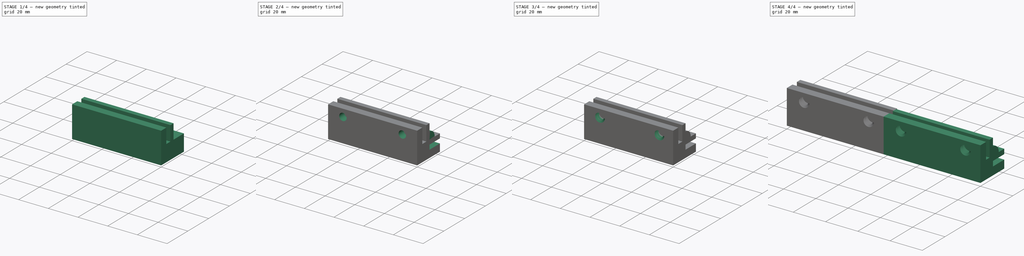
[diagram: build sequence overview — one tinted view per stage of 4, left to right]
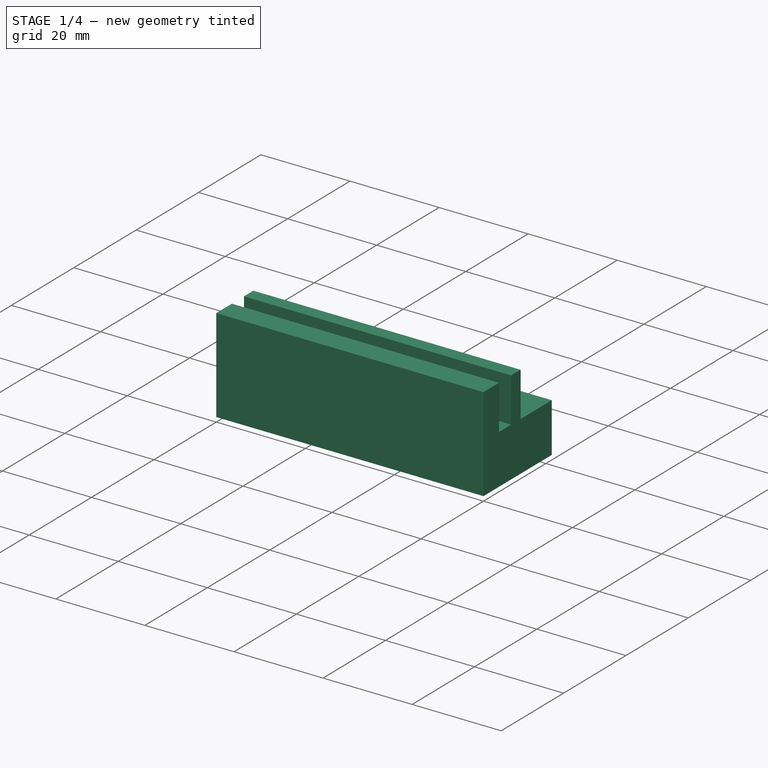
[diagram: stage 1 of 4 — iso view after this stage's code; geometry added in this stage tinted green]
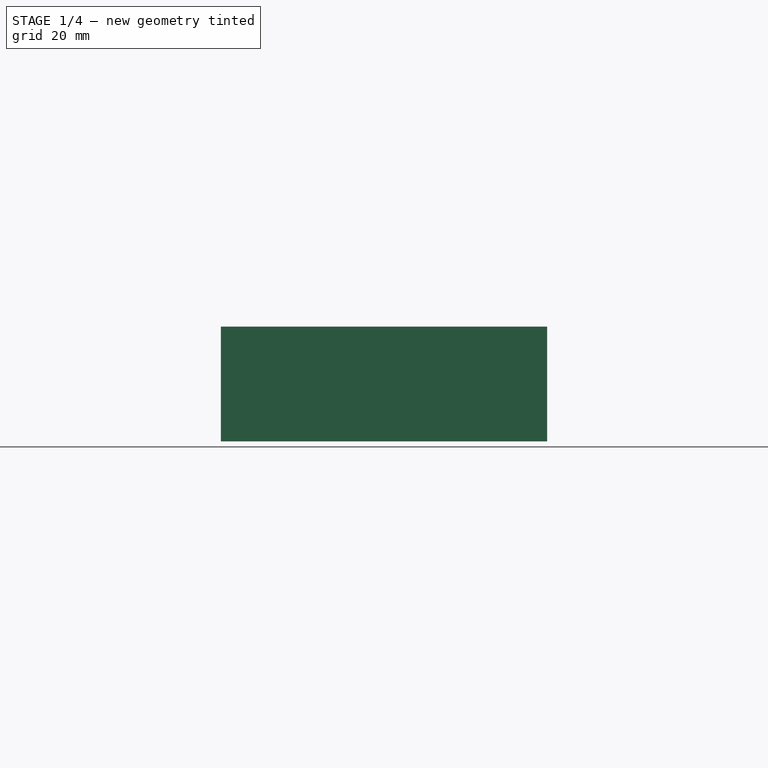
[diagram: stage 1 of 4 — front view after this stage's code; geometry added in this stage tinted green]
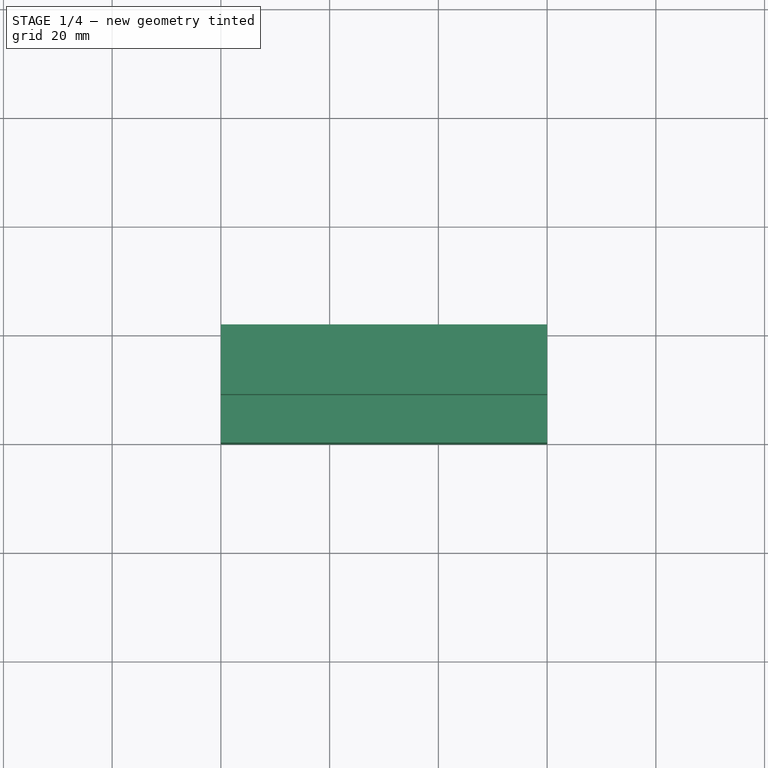
[diagram: stage 1 of 4 — top view after this stage's code; geometry added in this stage tinted green]
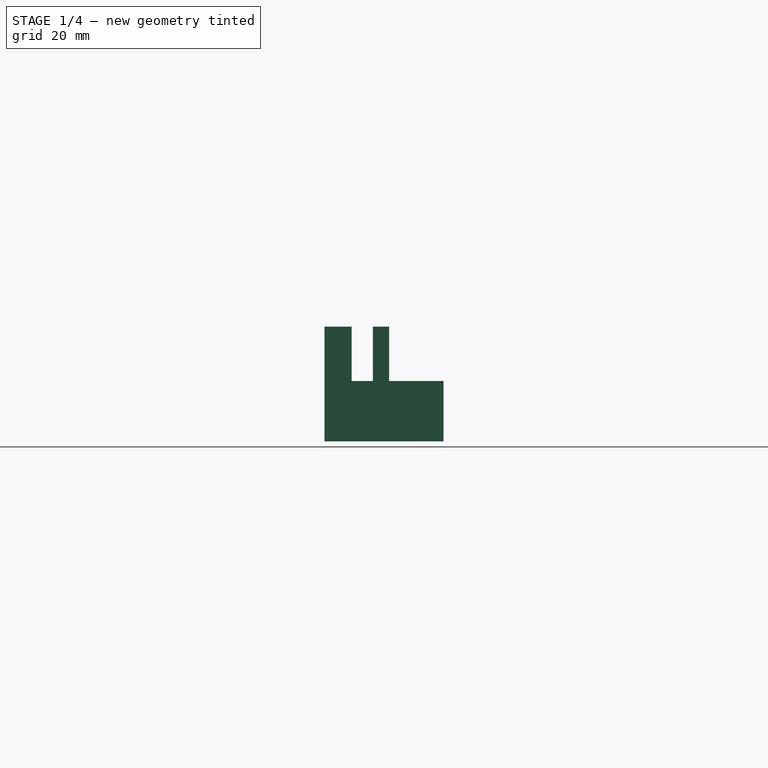
[diagram: stage 1 of 4 — right view after this stage's code; geometry added in this stage tinted green]
FCSTD DOCUMENT  (FreeCAD 0.20R29177 (Git))
Label: glassJoint40
License: All rights reserved
LicenseURL: http://en.wikipedia.org/wiki/All_rights_reserved
objects: Sketcher::SketchObject×11, PartDesign::Pocket×4, PartDesign::SubtractiveHelix×4, PartDesign::Pad×3, Spreadsheet::Sheet×1, PartDesign::Body×1, Part::Refine×1, Part::Feature×1, Part::MultiFuse×1
note: 37 computed .brp shape members not serialized (recipe doc carries the construction recipe); baked Part::Feature solids carry a one-line shape summary decoded from their .brp

FEATURE [Spreadsheet::Sheet] Spreadsheet
  cells = A2=width; B2(width)=60; C2=arm length, 60, temp change to 40; A3=height; B3(height)=10; C3=minus clamThickness is depth of glass in clam; A4=jointLen; B4(jointLen)=2; A5=glassThinkness; B5(glassThinkness)=2; A6=glassSpacing; B6(glassSpacing)=1.1; C6=0.15 is a bit too tight, changing to 0.2, to 0.5 (tight), to 0.9 (slight tight) to 1.1; A7=wallThickness; B7(wallThickness)=3; C8=total clam thickness; D8=wallThickness*2+glassThickness+glassSpacing; C9=not used; E9=screwHoleToXSide; F9(screwHoleToXSide)==B3 / 2 + F17; A10=clamOuterThickness; B10(clamOuterThickness)=5; E10=glassWithSpacing; F10(glassWithSpacing)==B5 + B6; E11=clamThickNess; F11(clamThickNess)==F10 + B7 + B10; G11=total Clam thickness, wall+glass+spacing+outerClamThickness; E12=totalHeight; F12(totalHeight)==B3 + F17; G12=clamThickness+height; H12=this is how long the total arm is; A13=screwR; B13(screwR)=2.5; E13=screwX; A14=screwBase; B14(screwPitch)=1.8; E14=pitch; F14(pitch)==B14 + 0.1; A15=screwHoleToSide; B15(screwHoleToSide)==B2 / 6; E15=pocketDepth; F15(pocketDepth)==F12 - F17; A16=screwHoleToSideLong; B16(screwHoleToSideLong)==B2 - B15; E16=glassWithSpacing1; F16(glassWithSpacing1)==B17 + B6; A17=glassThinkness1; B17(glassThinkness1)=2.8; E17=clamThickness1; F17(clamThickness1)==F16 + B7 + B10; E18=totalHeight1; F18(totalHeight1)==B3 + F11; E19=screwHoleToXSide1; F19(screwHoleToXSide1)==B3 / 2 + F11; G19=Spreadsheet.height / 2 + Spreadsheet.clamThickNess; E20=poketDepth1; F20(poketDepth1)==F18 - F11
FEATURE [Sketcher::SketchObject] Sketch
  FullyConstrained = true
  MapMode = 5
  Support = -> [XY_Plane]
  expr: Constraints[10] = Spreadsheet.clamThickness1
  expr: Constraints[9] = Spreadsheet.width
  sketch-geometry (4):
    g0: LineSegment StartX=0 StartY=0 StartZ=0 EndX=60 EndY=0 EndZ=0
    g1: LineSegment StartX=60 StartY=0 StartZ=0 EndX=60 EndY=11.9 EndZ=0
    g2: LineSegment StartX=60 StartY=11.9 StartZ=0 EndX=0 EndY=11.9 EndZ=0
    g3: LineSegment StartX=0 StartY=11.9 StartZ=0 EndX=0 EndY=0 EndZ=0
  constraints (11):
    c: Coincident(g0,g1)
    c: Coincident(g1,g2)
    c: Coincident(g2,g3)
    c: Coincident(g3,g0)
    c: Horizontal(g0)
    c: Horizontal(g2)
    c: Vertical(g1)
    c: Vertical(g3)
    c: Coincident(g0,g-1)
    c: DistanceX(g2,g1) = 60
    c: DistanceY(g0,g1) = 11.9
FEATURE [PartDesign::Pad] Pad  label="PadXZ"
  Direction = (0,0,1)
  Length = 21.1
  Length2 = 10
  Profile = -> Sketch
  ReferenceAxis = -> Sketch [N_Axis]
  Type = 0
  expr: Length = Spreadsheet.totalHeight1
FEATURE [Sketcher::SketchObject] Sketch001
  FullyConstrained = true
  MapMode = 5
  Placement = pos=(0,0,0) rot=(1,0,0;1.5708rad)
  Support = -> [Pad]
  expr: Constraints[10] = Spreadsheet.wallThickness + Spreadsheet.glassThinkness + Spreadsheet.glassSpacing + Spreadsheet.B10
  expr: Constraints[9] = Spreadsheet.width
  sketch-geometry (4):
    g0: LineSegment StartX=0 StartY=0 StartZ=0 EndX=60 EndY=0 EndZ=0
    g1: LineSegment StartX=60 StartY=0 StartZ=0 EndX=60 EndY=11.1 EndZ=0
    g2: LineSegment StartX=60 StartY=11.1 StartZ=0 EndX=0 EndY=11.1 EndZ=0
    g3: LineSegment StartX=0 StartY=11.1 StartZ=0 EndX=0 EndY=0 EndZ=0
  constraints (11):
    c: Coincident(g0,g1)
    c: Coincident(g1,g2)
    c: Coincident(g2,g3)
    c: Coincident(g3,g0)
    c: Horizontal(g0)
    c: Horizontal(g2)
    c: Vertical(g1)
    c: Vertical(g3)
    c: Coincident(g0,g-1)
    c: DistanceX(g2,g1) = 60
    c: DistanceY(g0,g1) = 11.1
FEATURE [PartDesign::Pad] Pad001  label="PadXY"
  BaseFeature = -> Pad
  Direction = (0,-1,2e-16)
  Length = 21.9
  Length2 = 10
  Profile = -> Sketch001
  ReferenceAxis = -> Sketch001 [N_Axis]
  Reversed = true
  Type = 0
  expr: Length = Spreadsheet.totalHeight
FEATURE [Sketcher::SketchObject] Sketch002
  ExternalGeometry = -> [Pad001]
  FullyConstrained = true
  MapMode = 5
  Placement = pos=(0,0,21.1) rot=(0,0,1;0rad)
  Support = -> [Pad001]
  expr: Constraints[10] = Spreadsheet.clamOuterThickness
  expr: Constraints[11] = Spreadsheet.width
  expr: Constraints[9] = Spreadsheet.glassWithSpacing1
  sketch-geometry (4):
    g0: LineSegment StartX=0 StartY=5 StartZ=0 EndX=60 EndY=5 EndZ=0
    g1: LineSegment StartX=60 StartY=5 StartZ=0 EndX=60 EndY=8.9 EndZ=0
    g2: LineSegment StartX=60 StartY=8.9 StartZ=0 EndX=0 EndY=8.9 EndZ=0
    g3: LineSegment StartX=0 StartY=8.9 StartZ=0 EndX=0 EndY=5 EndZ=0
  constraints (12):
    c: Coincident(g0,g1)
    c: Coincident(g1,g2)
    c: Coincident(g2,g3)
    c: Coincident(g3,g0)
    c: Horizontal(g0)
    c: Horizontal(g2)
    c: Vertical(g1)
    c: Vertical(g3)
    c: PointOnObject(g0,g-2)
    c: DistanceY(g0,g1) = 3.9
    c: DistanceY(g-1,g0) = 5
    c: DistanceX(g2,g2) = 60
FEATURE [PartDesign::Pocket] Pocket  label="PocketXZ"
  BaseFeature = -> Pad001
  Direction = (0,0,-1)
  Length = 10
  Length2 = 1
  Profile = -> Sketch002
  ReferenceAxis = -> Sketch002 [N_Axis]
  Type = 0
  UpToFace = -> Pad001 [Face13]
  expr: Length = Spreadsheet.poketDepth1
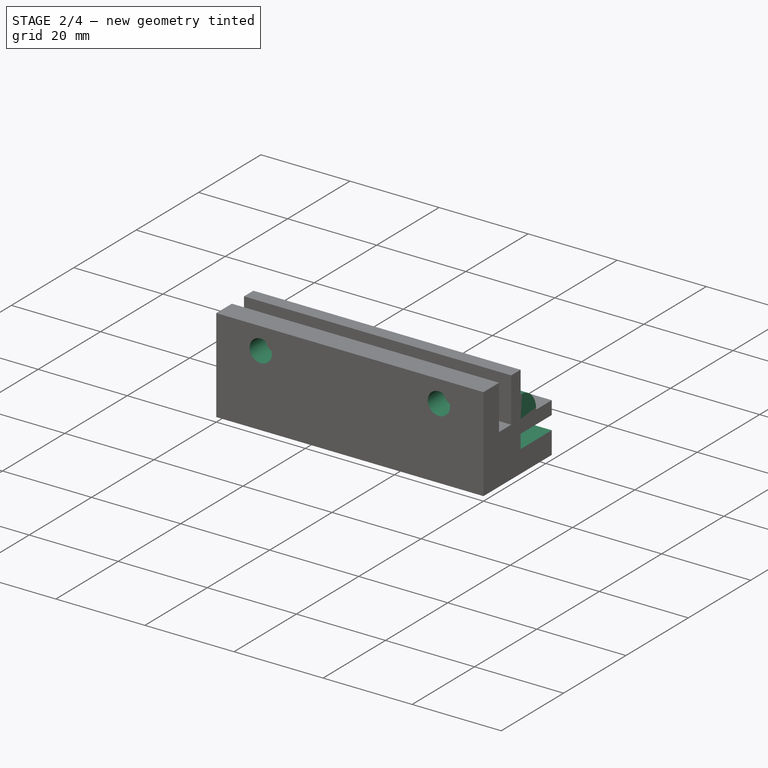
[diagram: stage 2 of 4 — iso view after this stage's code; geometry added in this stage tinted green]
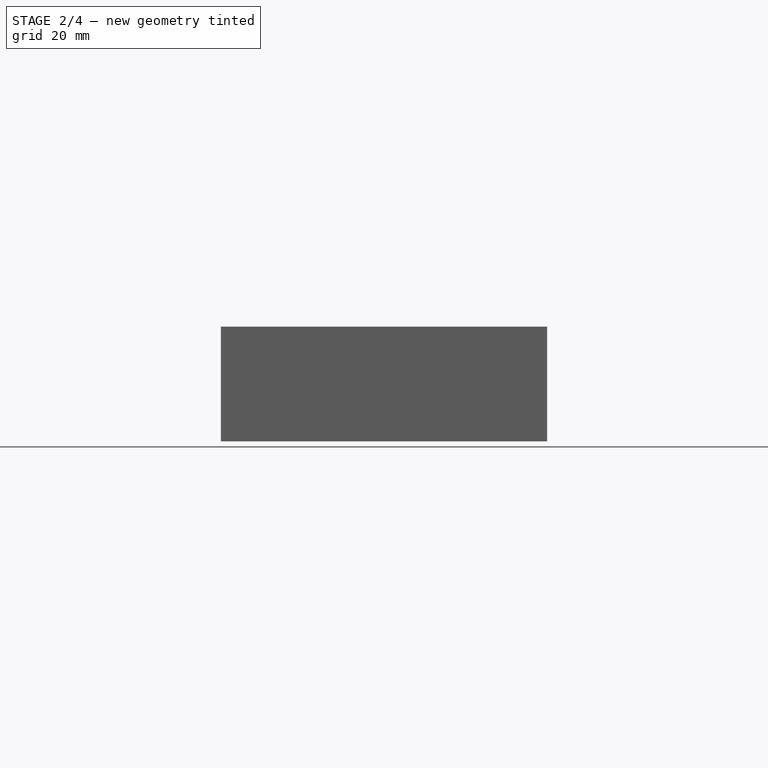
[diagram: stage 2 of 4 — front view after this stage's code; geometry added in this stage tinted green]
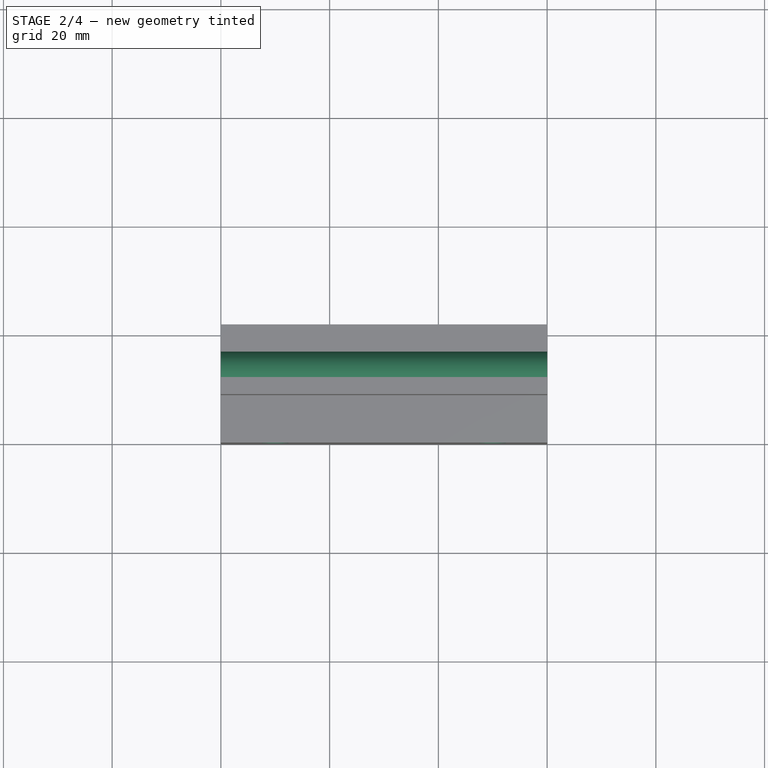
[diagram: stage 2 of 4 — top view after this stage's code; geometry added in this stage tinted green]
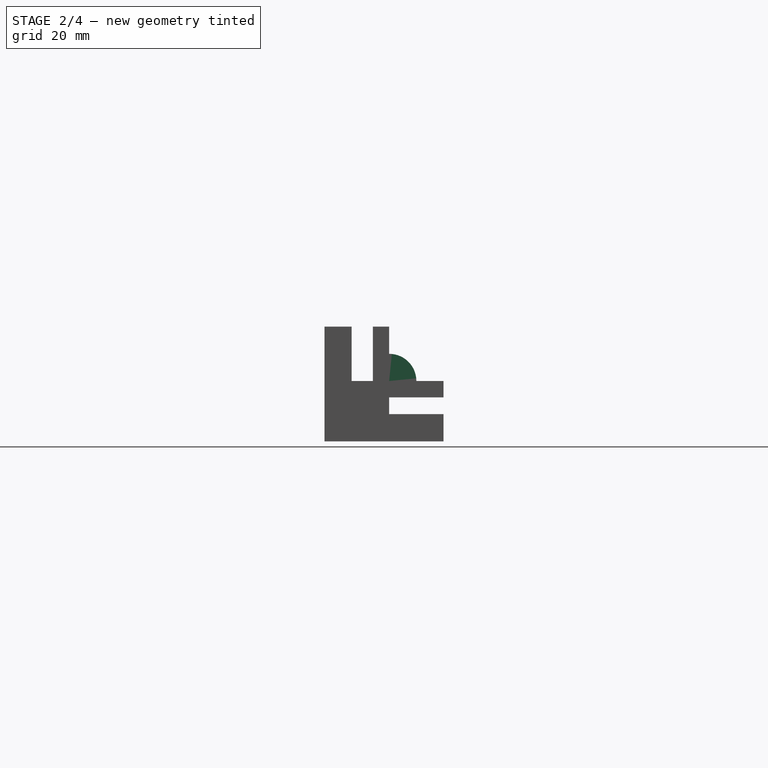
[diagram: stage 2 of 4 — right view after this stage's code; geometry added in this stage tinted green]
FEATURE [Sketcher::SketchObject] Sketch003
  ExternalGeometry = -> [Pocket]
  FullyConstrained = true
  MapMode = 5
  Placement = pos=(0,0,0) rot=(0.57735,-0.57735,-0.57735;2.0944rad)
  Support = -> [Pocket]
  expr: Constraints[10] = Spreadsheet.height
  expr: Constraints[11] = Spreadsheet.clamOuterThickness
  expr: Constraints[8] = Spreadsheet.glassThinkness + Spreadsheet.glassSpacing
  sketch-geometry (4):
    g0: LineSegment StartX=-21.9 StartY=8.1 StartZ=0 EndX=-11.9 EndY=8.1 EndZ=0
    g1: LineSegment StartX=-11.9 StartY=8.1 StartZ=0 EndX=-11.9 EndY=5 EndZ=0
    g2: LineSegment StartX=-11.9 StartY=5 StartZ=0 EndX=-21.9 EndY=5 EndZ=0
    g3: LineSegment StartX=-21.9 StartY=5 StartZ=0 EndX=-21.9 EndY=8.1 EndZ=0
  constraints (14):
    c: Coincident(g0,g1)
    c: Coincident(g1,g2)
    c: Coincident(g2,g3)
    c: Coincident(g3,g0)
    c: Horizontal(g0)
    c: Horizontal(g2)
    c: Vertical(g1)
    c: Vertical(g3)
    c: DistanceY(g2,g0) = 3.1
    c: DistanceY(g-3,g-3) = 11.1
    c: DistanceX(g2,g2) = 10
    c: DistanceY(g-1,g1) = 5
    c: PointOnObject(g1,g-4)
    c: DistanceX(g-3,g-4) = 10
FEATURE [PartDesign::Pocket] Pocket001  label="PocketXY"
  BaseFeature = -> Pocket
  Direction = (1,0,0)
  Length = 0
  Length2 = 0
  Profile = -> Sketch003
  ReferenceAxis = -> Sketch003 [N_Axis]
  Type = 1
FEATURE [Sketcher::SketchObject] Sketch004  label="SketchInnerFiletcir"
  ExternalGeometry = -> [Pocket001]
  FullyConstrained = true
  MapMode = 5
  Placement = pos=(0,0,0) rot=(0.57735,-0.57735,-0.57735;2.0944rad)
  Support = -> [Pocket001]
  sketch-geometry (3):
    g0: ArcOfCircle CenterX=-11.9 CenterY=11.1 CenterZ=0 NormalX=0 NormalY=0 NormalZ=1 AngleXU=0 Radius=5 StartAngle=1.5708 EndAngle=3.14159
    g1: LineSegment StartX=-16.9 StartY=11.1 StartZ=0 EndX=-11.9 EndY=11.1 EndZ=0
    g2: LineSegment StartX=-11.9 StartY=16.1 StartZ=0 EndX=-11.9 EndY=11.1 EndZ=0
  constraints (8):
    c: Coincident(g1,g0)
    c: Coincident(g1,g0)
    c: Coincident(g2,g0)
    c: Coincident(g2,g0)
    c: Coincident(g0,g-4)
    c: PointOnObject(g0,g-3)
    c: PointOnObject(g0,g-4)
    c: Radius(g0) = 5
FEATURE [PartDesign::Pad] Pad002  label="PadInnerFillet"
  BaseFeature = -> Pocket001
  Direction = (-1,0,0)
  Length = 60
  Length2 = 10
  Profile = -> Sketch004
  ReferenceAxis = -> Sketch004 [N_Axis]
  Reversed = true
  Type = 0
  expr: Length = Spreadsheet.width
FEATURE [Sketcher::SketchObject] Sketch005  label="Sketch005Screw1"
  FullyConstrained = true
  MapMode = 5
  Placement = pos=(0,0,0) rot=(1,0,0;1.5708rad)
  Support = -> [Pad002]
  expr: Constraints[0] = Spreadsheet.screwHoleToSide
  expr: Constraints[1] = Spreadsheet.screwHoleToXSide1
  expr: Constraints[2] = Spreadsheet.screwR
  expr: Constraints[3] = Spreadsheet.screwR
  expr: Constraints[4] = Spreadsheet.screwHoleToXSide1
  expr: Constraints[5] = Spreadsheet.screwHoleToSideLong
  sketch-geometry (2):
    g0: Circle CenterX=10 CenterY=16.1 CenterZ=0 NormalX=0 NormalY=0 NormalZ=1 AngleXU=0 Radius=2.5
    g1: Circle CenterX=50 CenterY=16.1 CenterZ=0 NormalX=0 NormalY=0 NormalZ=1 AngleXU=0 Radius=2.5
  constraints (6):
    c: DistanceX(g-1,g0) = 10
    c: DistanceY(g-1,g0) = 16.1
    c: Radius(g0) = 2.5
    c: Radius(g1) = 2.5
    c: DistanceY(g-1,g1) = 16.1
    c: DistanceX(g-1,g1) = 50
FEATURE [PartDesign::Pocket] Pocket002
  BaseFeature = -> Pad002
  Direction = (0,1,-2e-16)
  Length = 6
  Length2 = 5
  Profile = -> Sketch005
  ReferenceAxis = -> Sketch005 [N_Axis]
  Type = 0
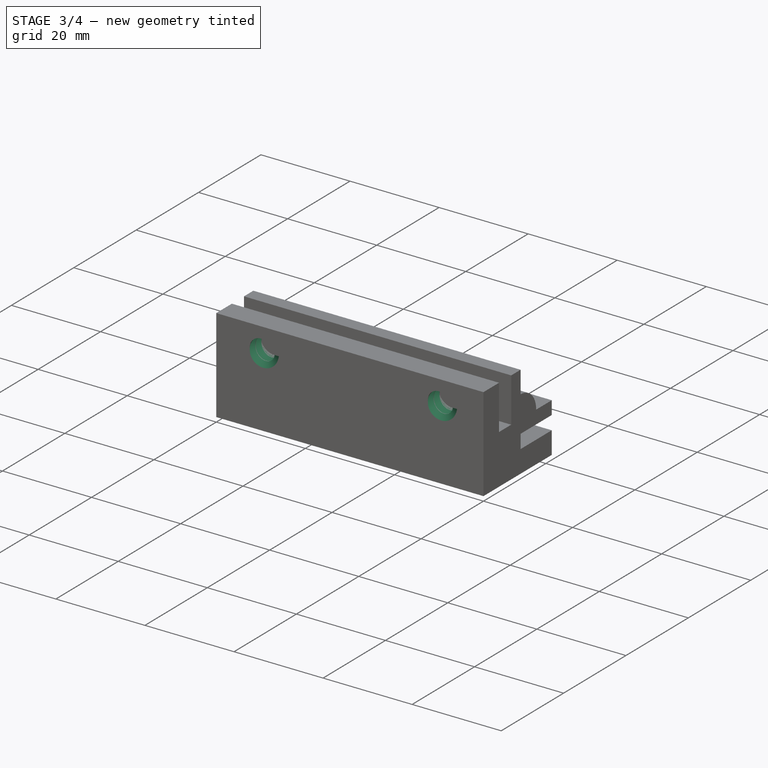
[diagram: stage 3 of 4 — iso view after this stage's code; geometry added in this stage tinted green]
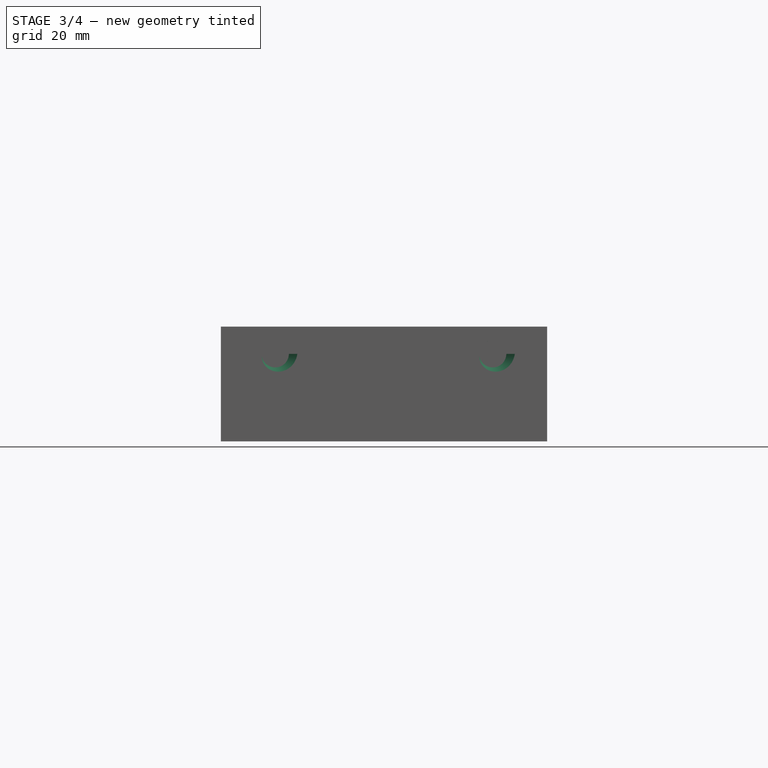
[diagram: stage 3 of 4 — front view after this stage's code; geometry added in this stage tinted green]
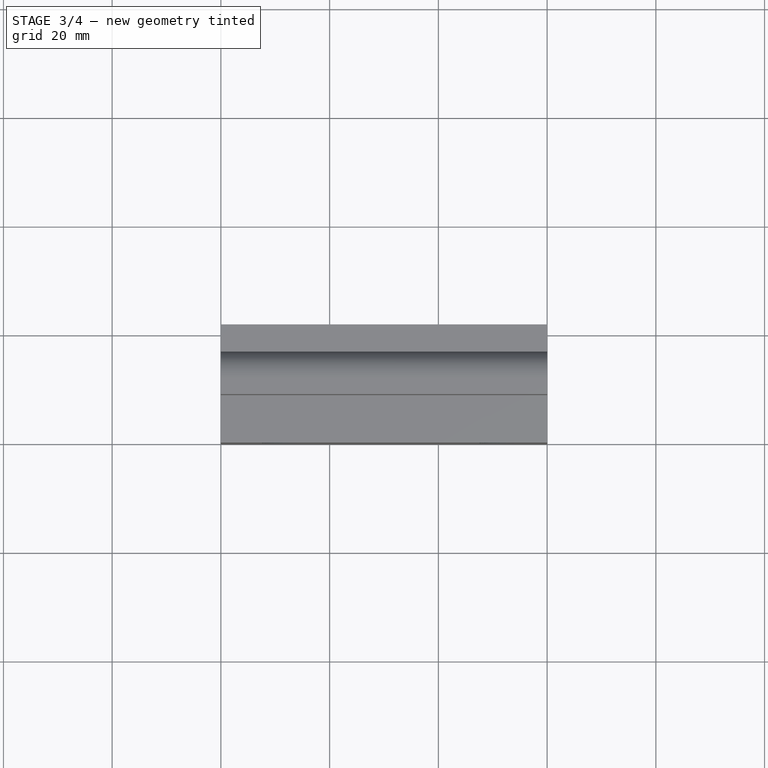
[diagram: stage 3 of 4 — top view after this stage's code; geometry added in this stage tinted green]
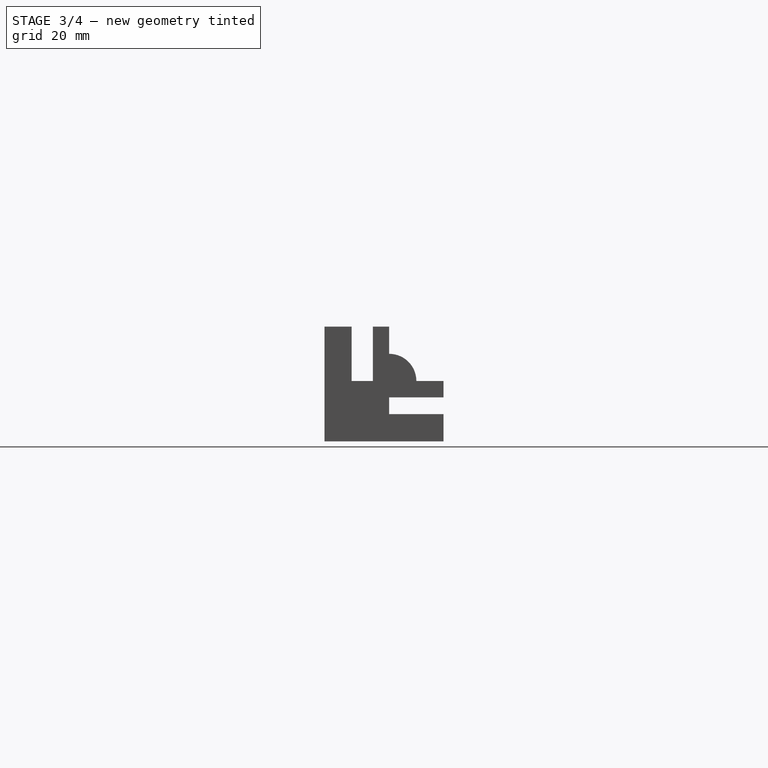
[diagram: stage 3 of 4 — right view after this stage's code; geometry added in this stage tinted green]
FEATURE [Sketcher::SketchObject] Sketch006  label="Sketch006Screw2"
  FullyConstrained = true
  MapMode = 5
  Placement = pos=(0,0,0) rot=(1,0,0;3.14159rad)
  Support = -> [Pocket002]
  expr: Constraints[0] = Spreadsheet.screwR
  expr: Constraints[1] = Spreadsheet.screwHoleToSide
  expr: Constraints[2] = Spreadsheet.screwHoleToXSide
  expr: Constraints[3] = Spreadsheet.screwR
  expr: Constraints[4] = Spreadsheet.screwHoleToXSide
  expr: Constraints[5] = Spreadsheet.screwHoleToSideLong
  sketch-geometry (2):
    g0: Circle CenterX=10 CenterY=-16.9 CenterZ=0 NormalX=0 NormalY=0 NormalZ=1 AngleXU=0 Radius=2.5
    g1: Circle CenterX=50 CenterY=-16.9 CenterZ=0 NormalX=0 NormalY=0 NormalZ=1 AngleXU=0 Radius=2.5
  constraints (6):
    c: Radius(g0) = 2.5
    c: DistanceX(g-1,g0) = 10
    c: DistanceY(g0,g-1) = 16.9
    c: Radius(g1) = 2.5
    c: DistanceY(g1,g-1) = 16.9
    c: DistanceX(g-1,g1) = 50
FEATURE [PartDesign::Pocket] Pocket003
  BaseFeature = -> Pocket002
  Direction = (0,2e-16,1)
  Length = 5
  Length2 = 5
  Profile = -> Sketch006
  ReferenceAxis = -> Sketch006 [N_Axis]
  Type = 2
FEATURE [Sketcher::SketchObject] SketchTemp_Sketch005_Edge0
  AttachmentOffset = pos=(10,16.1,0) rot=(1,0,0;1.5708rad)
  FullyConstrained = true
  MapMode = 5
  Placement = pos=(10,3.6e-15,16.1) rot=(1,0,0;3.14159rad)
  Support = -> [Pad002]
  expr: .AttachmentOffset.Base.x = Spreadsheet.screwHoleToSide
  expr: .AttachmentOffset.Base.y = Spreadsheet.screwHoleToXSide1
  sketch-geometry (3):
    g0: LineSegment StartX=2.5 StartY=0.9 StartZ=0 EndX=4.05885 EndY=0 EndZ=0
    g1: LineSegment StartX=4.05885 StartY=0 StartZ=0 EndX=2.5 EndY=-0.9 EndZ=0
    g2: LineSegment StartX=2.5 StartY=-0.9 StartZ=0 EndX=2.5 EndY=0.9 EndZ=0
  constraints (9):
    c: Equal(g2,g0)
    c: Equal(g2,g1)
    c: Distance(g2) = 1.8
    c: Coincident(g0,g1)
    c: Coincident(g1,g2)
    c: Coincident(g2,g0)
    c: Parallel(g2,g-2)
    c: PointOnObject(g0,g-1)
    c: DistanceX(g-1,g0) = 2.5
FEATURE [PartDesign::SubtractiveHelix] SubtractiveHelix
  Angle = 0
  Axis = (0,-1,2e-16)
  Base = (10,3.6e-15,16.1)
  BaseFeature = -> Pocket003
  Growth = 0
  HasBeenEdited = false
  Height = 6
  LeftHanded = false
  Mode = 0
  Outside = false
  Pitch = 1.9
  Profile = -> SketchTemp_Sketch005_Edge0
  ReferenceAxis = -> SketchTemp_Sketch005_Edge0 [V_Axis]
  Reversed = true
  Turns = 3.15789
FEATURE [Sketcher::SketchObject] SketchTemp_Sketch005_Edge1
  AttachmentOffset = pos=(50,16.1,0) rot=(1,0,0;1.5708rad)
  FullyConstrained = true
  MapMode = 5
  Placement = pos=(50,3.6e-15,16.1) rot=(1,0,0;3.14159rad)
  Support = -> [Pad002]
  expr: .AttachmentOffset.Base.x = Spreadsheet.screwHoleToSideLong
  expr: .AttachmentOffset.Base.y = Spreadsheet.screwHoleToXSide1
  sketch-geometry (3):
    g0: LineSegment StartX=2.5 StartY=0.9 StartZ=0 EndX=4.05885 EndY=0 EndZ=0
    g1: LineSegment StartX=4.05885 StartY=0 StartZ=0 EndX=2.5 EndY=-0.9 EndZ=0
    g2: LineSegment StartX=2.5 StartY=-0.9 StartZ=0 EndX=2.5 EndY=0.9 EndZ=0
  constraints (9):
    c: Equal(g2,g0)
    c: Equal(g2,g1)
    c: Distance(g2) = 1.8
    c: Coincident(g0,g1)
    c: Coincident(g1,g2)
    c: Coincident(g2,g0)
    c: Parallel(g2,g-2)
    c: PointOnObject(g0,g-1)
    c: DistanceX(g-1,g0) = 2.5
FEATURE [PartDesign::SubtractiveHelix] SubtractiveHelix001
  Angle = 0
  Axis = (0,-1,2e-16)
  Base = (50,3.6e-15,16.1)
  BaseFeature = -> SubtractiveHelix
  Growth = 0
  HasBeenEdited = false
  Height = 6
  LeftHanded = false
  Mode = 0
  Outside = false
  Pitch = 1.9
  Profile = -> SketchTemp_Sketch005_Edge1
  ReferenceAxis = -> SketchTemp_Sketch005_Edge1 [V_Axis]
  Reversed = true
  Turns = 3.15789
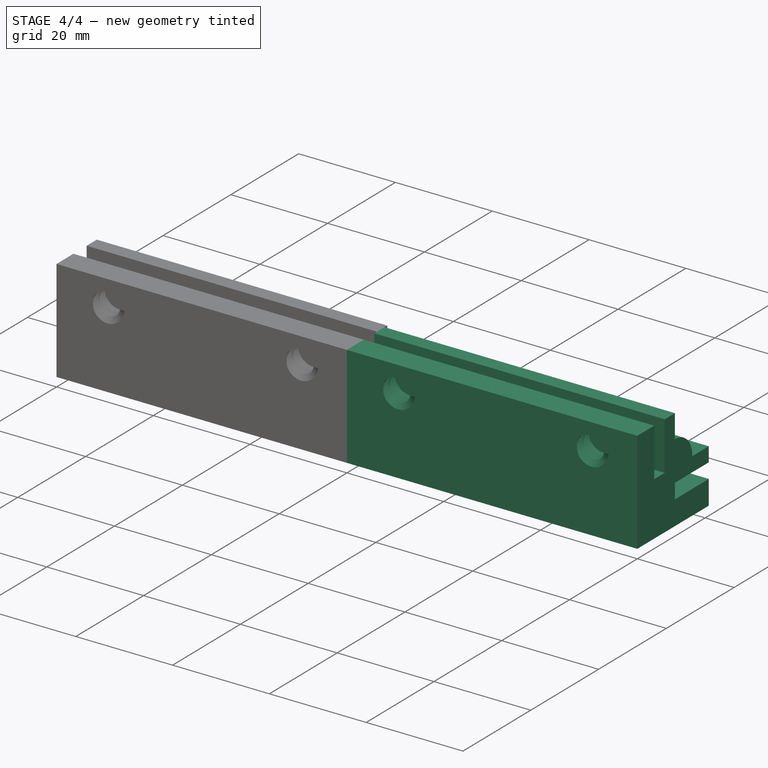
[diagram: stage 4 of 4 — iso view after this stage's code; geometry added in this stage tinted green]
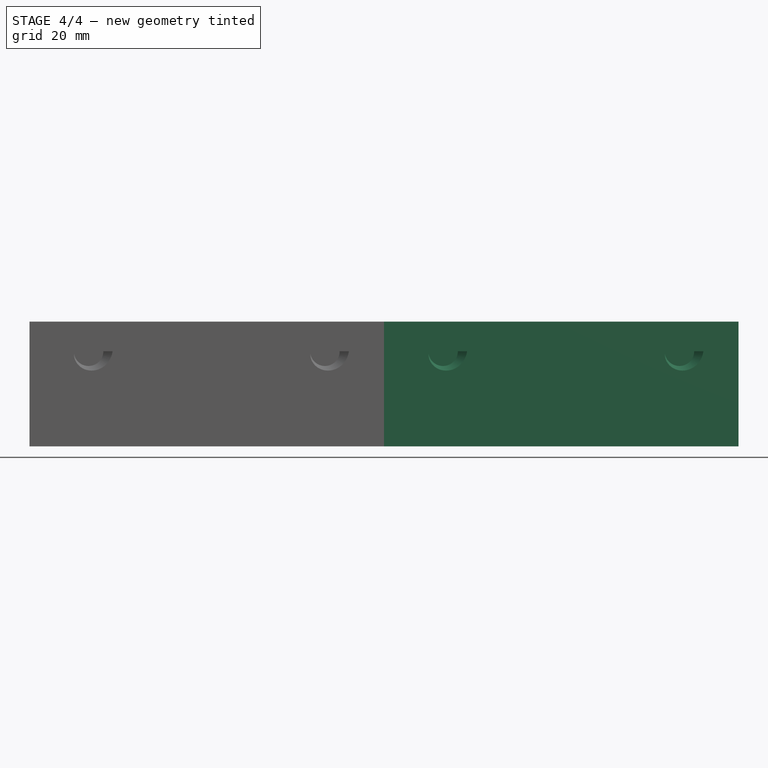
[diagram: stage 4 of 4 — front view after this stage's code; geometry added in this stage tinted green]
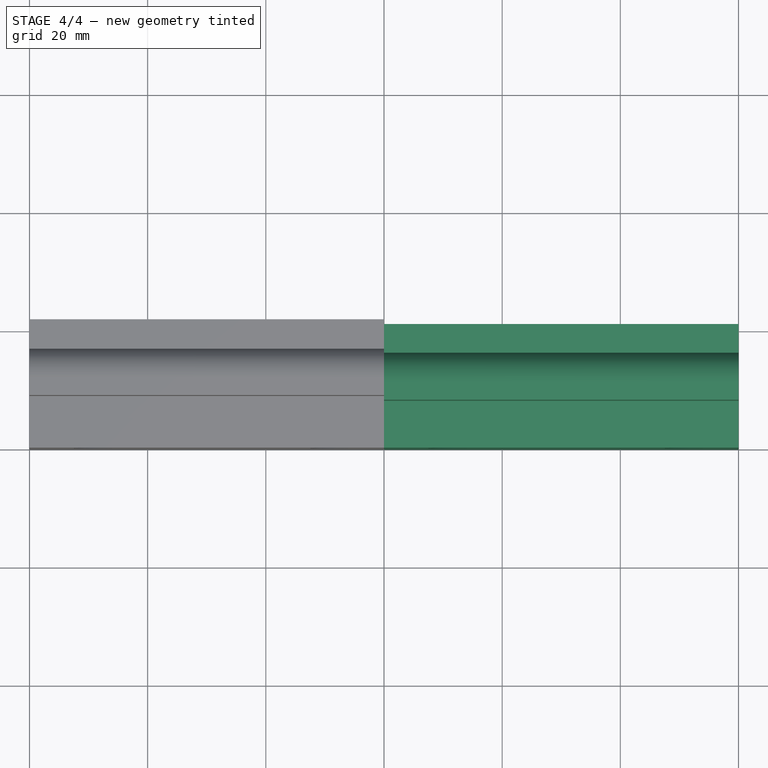
[diagram: stage 4 of 4 — top view after this stage's code; geometry added in this stage tinted green]
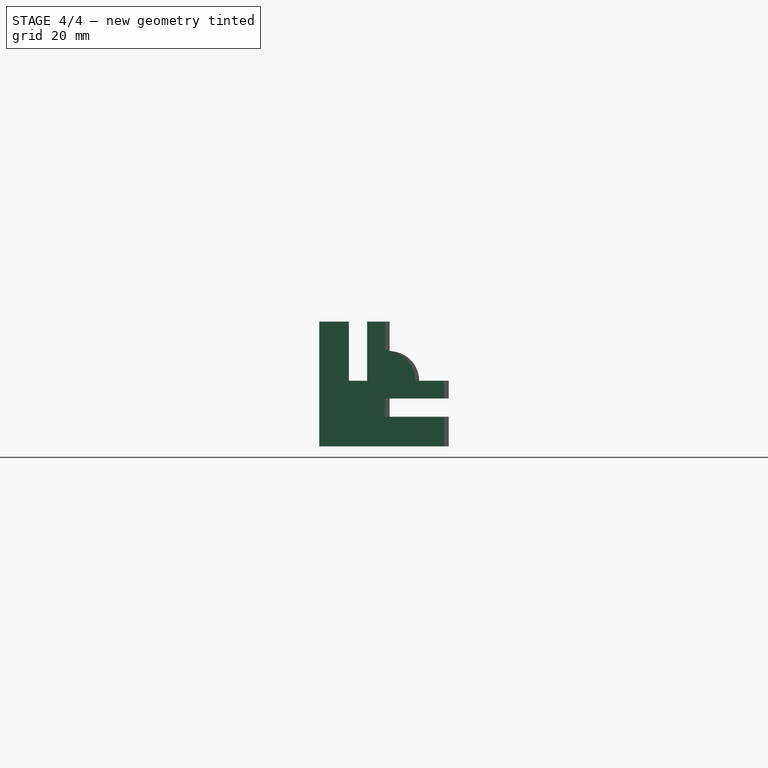
[diagram: stage 4 of 4 — right view after this stage's code; geometry added in this stage tinted green]
FEATURE [Sketcher::SketchObject] SketchTemp_Sketch006_Edge0
  AttachmentOffset = pos=(10,-16.9,0) rot=(1,0,0;1.5708rad)
  FullyConstrained = true
  MapMode = 5
  Placement = pos=(10,16.9,-3.8e-15) rot=(1,0,0;4.71239rad)
  Support = -> [Pocket002]
  expr: .AttachmentOffset.Base.x = Spreadsheet.screwHoleToSide
  expr: .AttachmentOffset.Base.y = -Spreadsheet.screwHoleToXSide
  sketch-geometry (3):
    g0: LineSegment StartX=2.5 StartY=0.9 StartZ=0 EndX=4.05885 EndY=0 EndZ=0
    g1: LineSegment StartX=4.05885 StartY=0 StartZ=0 EndX=2.5 EndY=-0.9 EndZ=0
    g2: LineSegment StartX=2.5 StartY=-0.9 StartZ=0 EndX=2.5 EndY=0.9 EndZ=0
  constraints (9):
    c: Equal(g2,g0)
    c: Equal(g2,g1)
    c: Distance(g2) = 1.8
    c: Coincident(g0,g1)
    c: Coincident(g1,g2)
    c: Coincident(g2,g0)
    c: Parallel(g2,g-2)
    c: PointOnObject(g0,g-1)
    c: DistanceX(g-1,g0) = 2.5
FEATURE [PartDesign::SubtractiveHelix] SubtractiveHelix002
  Angle = 0
  Axis = (0,-3e-16,-1)
  Base = (10,16.9,-3.8e-15)
  BaseFeature = -> SubtractiveHelix001
  Growth = 0
  HasBeenEdited = false
  Height = 6
  LeftHanded = false
  Mode = 0
  Outside = false
  Pitch = 1.9
  Profile = -> SketchTemp_Sketch006_Edge0
  ReferenceAxis = -> SketchTemp_Sketch006_Edge0 [V_Axis]
  Reversed = true
  Turns = 3.15789
FEATURE [Sketcher::SketchObject] SketchTemp_Sketch006_Edge1
  AttachmentOffset = pos=(50,-16.9,0) rot=(1,0,0;1.5708rad)
  FullyConstrained = true
  MapMode = 5
  Placement = pos=(50,16.9,-3.8e-15) rot=(1,0,0;4.71239rad)
  Support = -> [Pocket002]
  expr: .AttachmentOffset.Base.x = Spreadsheet.screwHoleToSideLong
  expr: .AttachmentOffset.Base.y = -Spreadsheet.screwHoleToXSide
  sketch-geometry (3):
    g0: LineSegment StartX=2.5 StartY=0.9 StartZ=0 EndX=4.05885 EndY=0 EndZ=0
    g1: LineSegment StartX=4.05885 StartY=0 StartZ=0 EndX=2.5 EndY=-0.9 EndZ=0
    g2: LineSegment StartX=2.5 StartY=-0.9 StartZ=0 EndX=2.5 EndY=0.9 EndZ=0
  constraints (9):
    c: Equal(g2,g0)
    c: Equal(g2,g1)
    c: Distance(g2) = 1.8
    c: Coincident(g0,g1)
    c: Coincident(g1,g2)
    c: Coincident(g2,g0)
    c: Parallel(g2,g-2)
    c: PointOnObject(g0,g-1)
    c: DistanceX(g-1,g0) = 2.5
FEATURE [PartDesign::SubtractiveHelix] SubtractiveHelix003
  Angle = 0
  Axis = (0,-3e-16,-1)
  Base = (50,16.9,-3.8e-15)
  BaseFeature = -> SubtractiveHelix002
  Growth = 0
  HasBeenEdited = false
  Height = 6
  LeftHanded = false
  Mode = 0
  Outside = false
  Pitch = 1.9
  Profile = -> SketchTemp_Sketch006_Edge1
  ReferenceAxis = -> SketchTemp_Sketch006_Edge1 [V_Axis]
  Reversed = true
  Turns = 3.15789
FEATURE [PartDesign::Body] Body
  Group = -> [Sketch,Pad,Sketch001,Pad001,Sketch002,Pocket,Sketch003,Pocket001,Sketch004,Pad002,Sketch005,Pocket002,Sketch006,Pocket003,SketchTemp_Sketch005_Edge0,SubtractiveHelix,SketchTemp_Sketch005_Edge1,SubtractiveHelix001,SketchTemp_Sketch006_Edge0,SubtractiveHelix002,SketchTemp_Sketch006_Edge1,SubtractiveHelix003]
  Origin = -> Origin
  Tip = -> SubtractiveHelix003
FEATURE [Part::Refine] SubtractiveHelix003001  label="Joint40"
  Source = -> SubtractiveHelix003
FEATURE [Part::Feature] SubtractiveHelix003001001  label="Joint041"
  Placement = pos=(60,0,0) rot=(0,0,1;0rad)
  shape: bbox 60 x 22 x 22 mm, 53 faces (baked)
  expr: .Placement.Base.x = Spreadsheet.width
FEATURE [Part::MultiFuse] Fusion  label="FusionJoin120"
  Shapes = -> [SubtractiveHelix003001001,SubtractiveHelix003001]
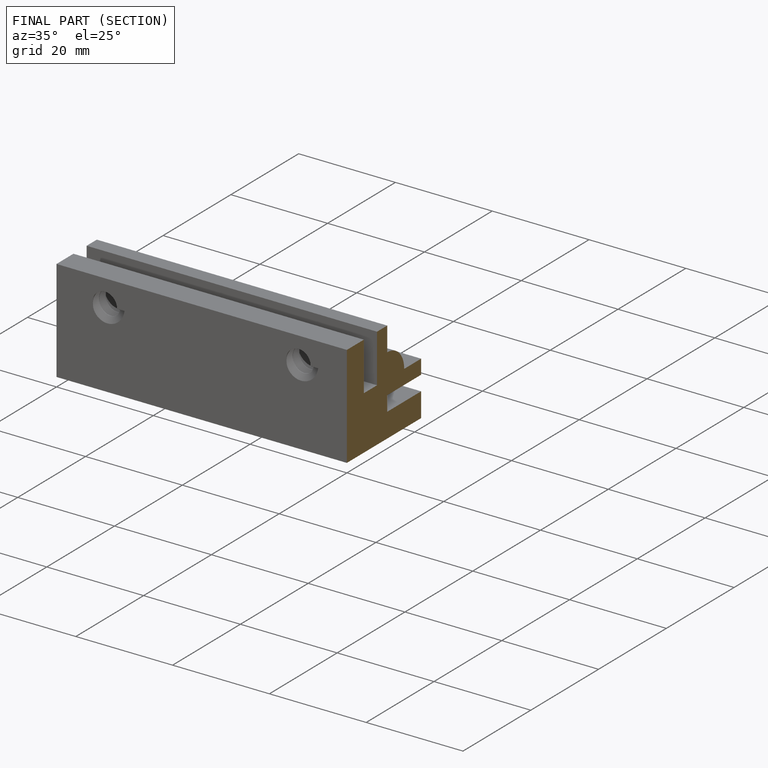
[diagram: finished part — half-section view (interior)]
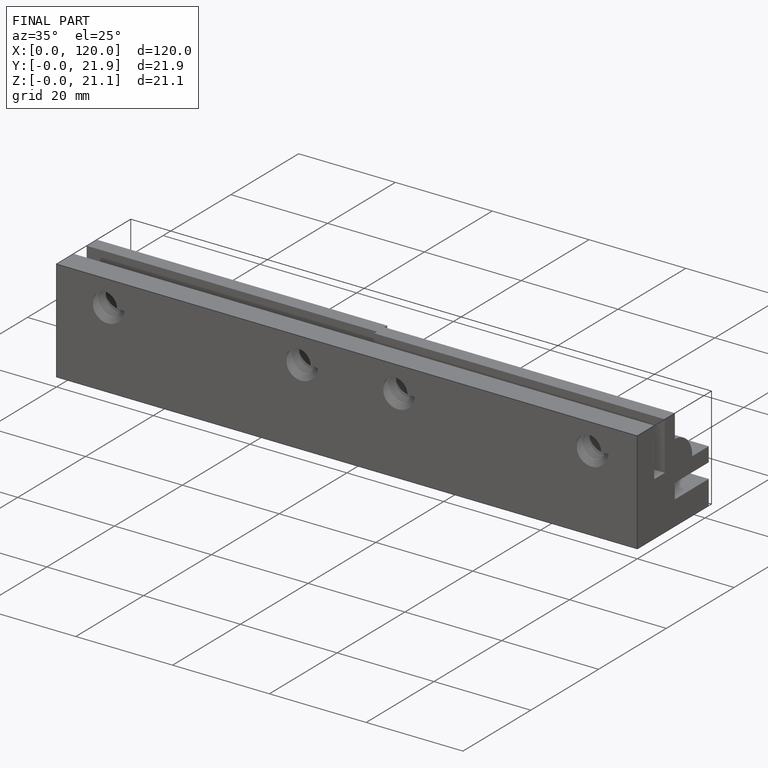
[diagram: finished part — iso view with bounding-box wireframe]
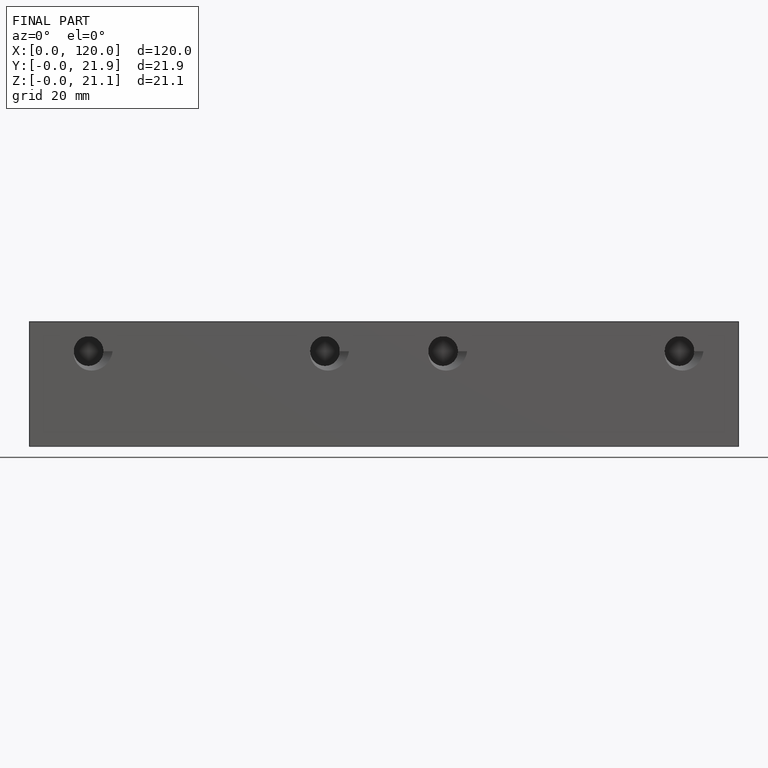
[diagram: finished part — front view with bounding-box wireframe]
